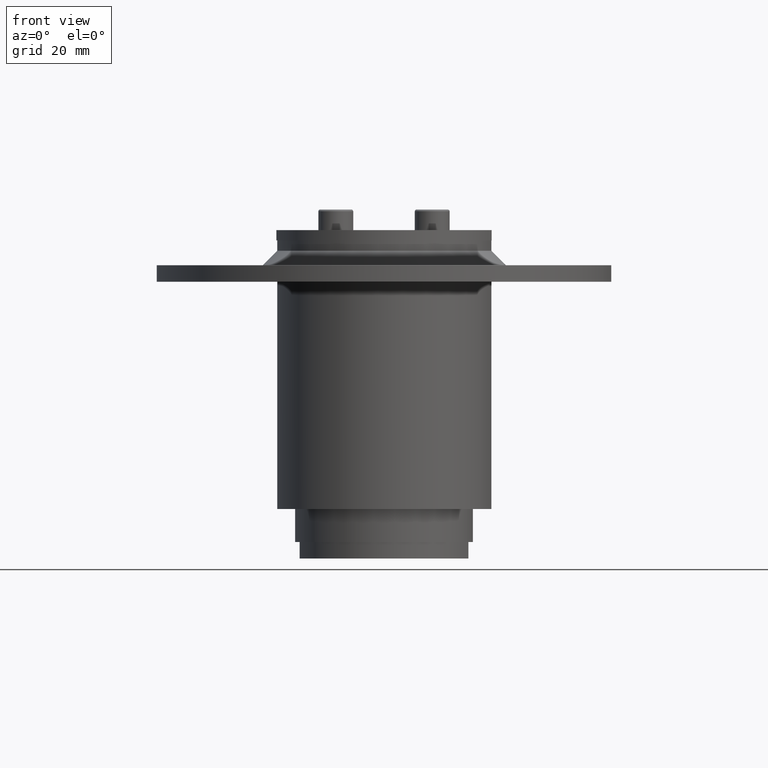
[diagram: clean part render]
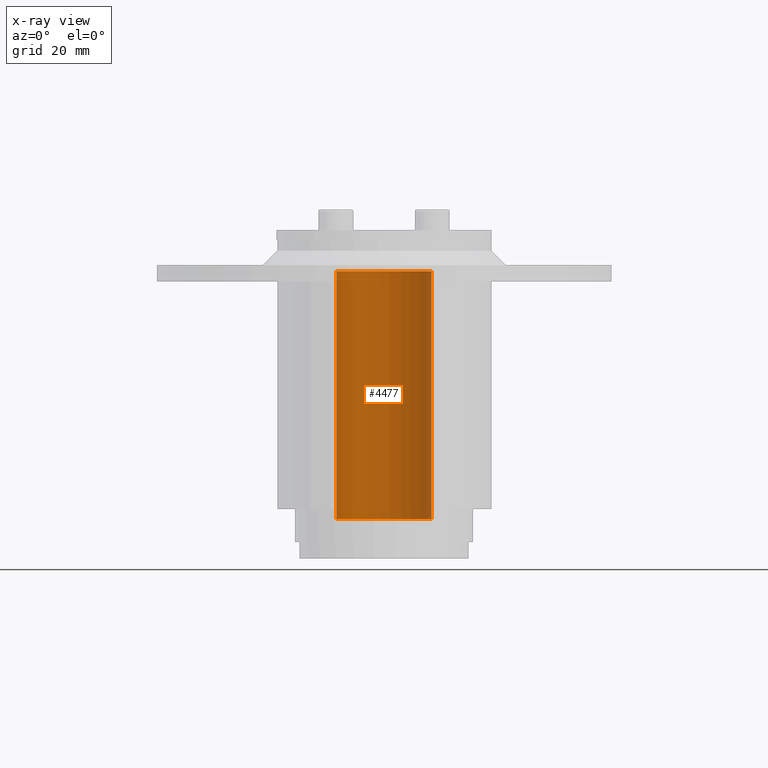
[diagram: x-ray — body ghosted, one internal face saturated and labeled with its STEP entity id]
A machine part, front view, then the same camera in x-ray: the body is ghosted and one INTERNAL B-rep face — a face not visible from any outside direction — is saturated and labeled: STEP entity #4477.
In plain terms, the highlighted cylindrical surface (partial cylindrical patch) has radius 11.5 mm, axis along (0, -0, 1).
Its self-contained STEP definition (entity closure, byte-faithful):
#4411=CARTESIAN_POINT('',(-30.000000000000004,-1.145169E-015,11.499999999999996));
#4412=VERTEX_POINT('',#4411);
#4419=CARTESIAN_POINT('',(-30.0,2.553513E-015,-11.499999999999996));
#4420=VERTEX_POINT('',#4419);
#4421=CARTESIAN_POINT('',(-30.000000000000004,0.0,0.0));
#4422=DIRECTION('',(1.0,0.0,0.0));
#4423=DIRECTION('',(0.0,0.0,-1.0));
#4424=AXIS2_PLACEMENT_3D('',#4421,#4422,#4423);
#4425=CIRCLE('',#4424,11.499999999999996);
#4426=EDGE_CURVE('',#4420,#4412,#4425,.T.);
#4446=CARTESIAN_POINT('',(0.0,0.0,0.0));
#4447=DIRECTION('',(1.0,0.0,0.0));
#4448=DIRECTION('',(0.0,0.0,-1.0));
#4449=AXIS2_PLACEMENT_3D('',#4446,#4447,#4448);
#4450=CYLINDRICAL_SURFACE('',#4449,11.499999999999996);
#4451=CARTESIAN_POINT('',(30.0,-1.145169E-015,11.499999999999996));
#4452=VERTEX_POINT('',#4451);
#4453=CARTESIAN_POINT('',(-30.0,-1.145169E-015,11.499999999999996));
#4454=DIRECTION('',(1.0,0.0,0.0));
#4455=VECTOR('',#4454,60.0);
#4456=LINE('',#4453,#4455);
#4457=EDGE_CURVE('',#4412,#4452,#4456,.T.);
#4458=ORIENTED_EDGE('',*,*,#4457,.T.);
#4459=CARTESIAN_POINT('',(30.0,2.553513E-015,-11.499999999999996));
#4460=VERTEX_POINT('',#4459);
#4461=CARTESIAN_POINT('',(30.0,0.0,0.0));
#4462=DIRECTION('',(1.0,0.0,0.0));
#4463=DIRECTION('',(0.0,0.0,-1.0));
#4464=AXIS2_PLACEMENT_3D('',#4461,#4462,#4463);
#4465=CIRCLE('',#4464,11.499999999999996);
#4466=EDGE_CURVE('',#4460,#4452,#4465,.T.);
#4467=ORIENTED_EDGE('',*,*,#4466,.F.);
#4468=CARTESIAN_POINT('',(-30.0,2.553513E-015,-11.499999999999996));
#4469=DIRECTION('',(1.0,0.0,0.0));
#4470=VECTOR('',#4469,60.0);
#4471=LINE('',#4468,#4470);
#4472=EDGE_CURVE('',#4420,#4460,#4471,.T.);
#4473=ORIENTED_EDGE('',*,*,#4472,.F.);
#4474=ORIENTED_EDGE('',*,*,#4426,.T.);
#4475=EDGE_LOOP('',(#4458,#4467,#4473,#4474));
#4476=FACE_OUTER_BOUND('',#4475,.T.);
#4477=ADVANCED_FACE('',(#4476),#4450,.T.);